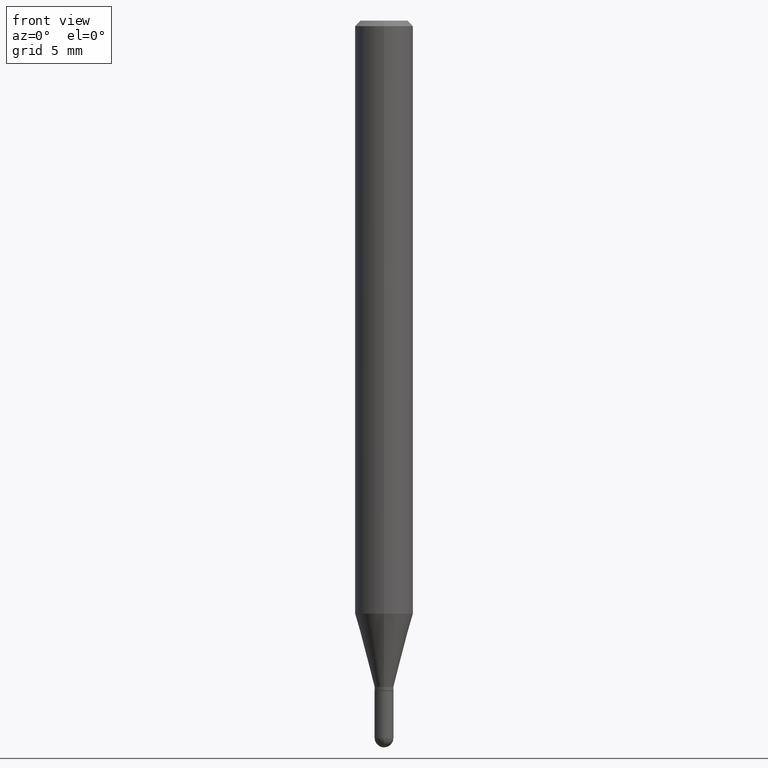
[diagram: clean part render]
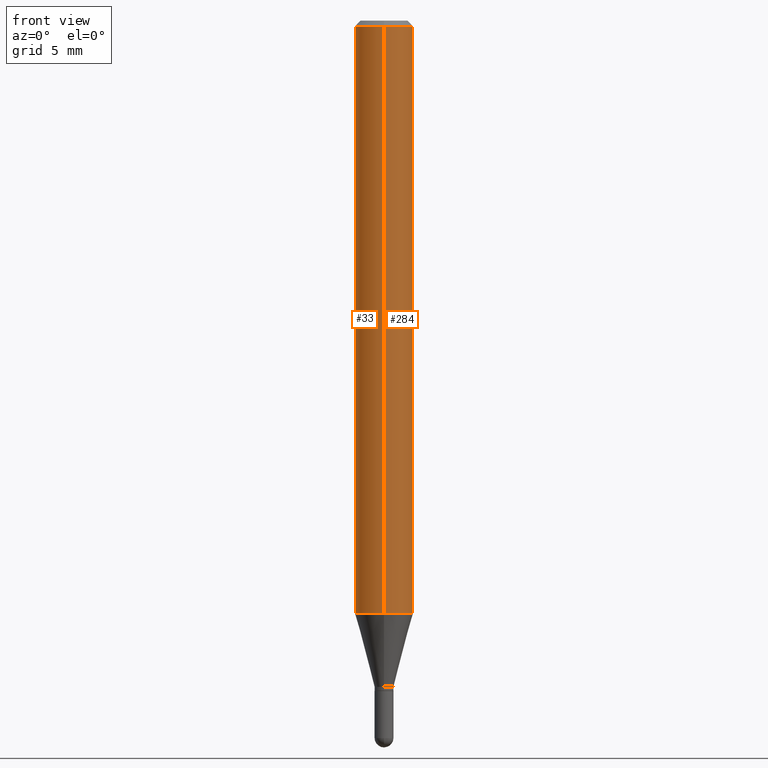
[diagram: same view with one multi-face feature highlighted, each face labeled with its STEP entity id]
A machine part, front view. The highlighted faces form ONE feature: a constant-radius fillet chain: 2 tangent blend faces with common blend radius 2.0002 mm. The faces share edges in the B-rep.
Their STEP definitions:
[1] entity #284 (Cylinder):
#2 = CARTESIAN_POINT ( 'NONE',  ( 5.595524044111178503E-16, 0.07874999999999436617, -1.606141499577714127 ) ) ;
#4 = EDGE_LOOP ( 'NONE', ( #87, #277, #6, #43 ) ) ;
#6 = ORIENTED_EDGE ( 'NONE', *, *, #151, .F. ) ;
#12 = AXIS2_PLACEMENT_3D ( 'NONE', #432, #510, #39 ) ;
#39 = DIRECTION ( 'NONE',  ( -6.982962677686264344E-15, -1.000000000000000000, 3.469013325287953293E-15 ) ) ;
#41 = EDGE_CURVE ( 'NONE', #403, #158, #329, .T. ) ;
#43 = ORIENTED_EDGE ( 'NONE', *, *, #93, .F. ) ;
#57 = CYLINDRICAL_SURFACE ( 'NONE', #139, 0.07875000000000000056 ) ;
#71 = CARTESIAN_POINT ( 'NONE',  ( -5.499083108677933457E-16, -0.07875000000000000056, 2.749503105160112772E-16 ) ) ;
#87 = ORIENTED_EDGE ( 'NONE', *, *, #480, .T. ) ;
#93 = EDGE_CURVE ( 'NONE', #160, #448, #108, .T. ) ;
#94 = CARTESIAN_POINT ( 'NONE',  ( 0.000000000000000000, 0.000000000000000000, 0.000000000000000000 ) ) ;
#108 = LINE ( 'NONE', #71, #310 ) ;
#110 = CARTESIAN_POINT ( 'NONE',  ( -5.499083108677930499E-16, -0.07875000000000004219, -0.01499999999999974097 ) ) ;
#111 = AXIS2_PLACEMENT_3D ( 'NONE', #462, #262, #502 ) ;
#118 = CIRCLE ( 'NONE', #111, 0.07875000000000000056 ) ;
#128 = VECTOR ( 'NONE', #171, 39.37007874015748143 ) ;
#134 = CARTESIAN_POINT ( 'NONE',  ( 5.595524044110787031E-16, 0.07875000000000000056, -2.749503105160112772E-16 ) ) ;
#139 = AXIS2_PLACEMENT_3D ( 'NONE', #94, #208, #368 ) ;
#143 = CARTESIAN_POINT ( 'NONE',  ( 5.595524044111183434E-16, 0.07874999999999994504, -0.01500000000000029261 ) ) ;
#144 = FACE_OUTER_BOUND ( 'NONE', #4, .T. ) ;
#151 = EDGE_CURVE ( 'NONE', #448, #158, #118, .T. ) ;
#158 = VERTEX_POINT ( 'NONE', #143 ) ;
#160 = VERTEX_POINT ( 'NONE', #424 ) ;
#165 = CIRCLE ( 'NONE', #12, 0.07875000000000000056 ) ;
#171 = DIRECTION ( 'NONE',  ( -2.445502900049389790E-29, 3.491432514489032662E-15, 1.000000000000000000 ) ) ;
#208 = DIRECTION ( 'NONE',  ( -2.445502900049389790E-29, 3.491432514489032662E-15, 1.000000000000000000 ) ) ;
#262 = DIRECTION ( 'NONE',  ( -2.445502900049389790E-29, 3.491432514489032662E-15, 1.000000000000000000 ) ) ;
#277 = ORIENTED_EDGE ( 'NONE', *, *, #41, .T. ) ;
#284 = ADVANCED_FACE ( 'NONE', ( #144 ), #57, .T. ) ;
#310 = VECTOR ( 'NONE', #346, 39.37007874015748143 ) ;
#329 = LINE ( 'NONE', #134, #128 ) ;
#346 = DIRECTION ( 'NONE',  ( -2.445502900049389790E-29, 3.491432514489032662E-15, 1.000000000000000000 ) ) ;
#368 = DIRECTION ( 'NONE',  ( -6.982962677686264344E-15, -1.000000000000000000, 3.491432514489031873E-15 ) ) ;
#403 = VERTEX_POINT ( 'NONE', #2 ) ;
#424 = CARTESIAN_POINT ( 'NONE',  ( -5.499083108677542971E-16, -0.07875000000000560718, -1.606141499577713683 ) ) ;
#432 = CARTESIAN_POINT ( 'NONE',  ( 3.927823695106974642E-29, -5.607734654495803557E-15, -1.606141499577713905 ) ) ;
#448 = VERTEX_POINT ( 'NONE', #110 ) ;
#462 = CARTESIAN_POINT ( 'NONE',  ( 3.668254350074088416E-31, -5.237148771733555328E-17, -0.01500000000000001679 ) ) ;
#480 = EDGE_CURVE ( 'NONE', #160, #403, #165, .T. ) ;
#502 = DIRECTION ( 'NONE',  ( -6.982962677686264344E-15, -1.000000000000000000, 3.496114991891765576E-15 ) ) ;
#510 = DIRECTION ( 'NONE',  ( -2.445502900049389790E-29, 3.491432514489032662E-15, 1.000000000000000000 ) ) ;
[2] entity #33 (Cylinder):
#2 = CARTESIAN_POINT ( 'NONE',  ( 5.595524044111178503E-16, 0.07874999999999436617, -1.606141499577714127 ) ) ;
#16 = DIRECTION ( 'NONE',  ( -6.982962677686264344E-15, -1.000000000000000000, 3.496114991891765576E-15 ) ) ;
#17 = CYLINDRICAL_SURFACE ( 'NONE', #348, 0.07875000000000000056 ) ;
#33 = ADVANCED_FACE ( 'NONE', ( #453 ), #17, .T. ) ;
#41 = EDGE_CURVE ( 'NONE', #403, #158, #329, .T. ) ;
#53 = ORIENTED_EDGE ( 'NONE', *, *, #93, .T. ) ;
#56 = DIRECTION ( 'NONE',  ( -2.445502900049389790E-29, 3.491432514489032662E-15, 1.000000000000000000 ) ) ;
#71 = CARTESIAN_POINT ( 'NONE',  ( -5.499083108677933457E-16, -0.07875000000000000056, 2.749503105160112772E-16 ) ) ;
#93 = EDGE_CURVE ( 'NONE', #160, #448, #108, .T. ) ;
#108 = LINE ( 'NONE', #71, #310 ) ;
#110 = CARTESIAN_POINT ( 'NONE',  ( -5.499083108677930499E-16, -0.07875000000000004219, -0.01499999999999974097 ) ) ;
#128 = VECTOR ( 'NONE', #171, 39.37007874015748143 ) ;
#134 = CARTESIAN_POINT ( 'NONE',  ( 5.595524044110787031E-16, 0.07875000000000000056, -2.749503105160112772E-16 ) ) ;
#143 = CARTESIAN_POINT ( 'NONE',  ( 5.595524044111183434E-16, 0.07874999999999994504, -0.01500000000000029261 ) ) ;
#158 = VERTEX_POINT ( 'NONE', #143 ) ;
#160 = VERTEX_POINT ( 'NONE', #424 ) ;
#164 = AXIS2_PLACEMENT_3D ( 'NONE', #372, #259, #16 ) ;
#171 = DIRECTION ( 'NONE',  ( -2.445502900049389790E-29, 3.491432514489032662E-15, 1.000000000000000000 ) ) ;
#190 = DIRECTION ( 'NONE',  ( -6.982962677686264344E-15, -1.000000000000000000, 3.469013325287953293E-15 ) ) ;
#198 = ORIENTED_EDGE ( 'NONE', *, *, #227, .F. ) ;
#227 = EDGE_CURVE ( 'NONE', #158, #448, #316, .T. ) ;
#232 = DIRECTION ( 'NONE',  ( -2.445502900049389790E-29, 3.491432514489032662E-15, 1.000000000000000000 ) ) ;
#259 = DIRECTION ( 'NONE',  ( -2.445502900049389790E-29, 3.491432514489032662E-15, 1.000000000000000000 ) ) ;
#294 = ORIENTED_EDGE ( 'NONE', *, *, #41, .F. ) ;
#310 = VECTOR ( 'NONE', #346, 39.37007874015748143 ) ;
#316 = CIRCLE ( 'NONE', #164, 0.07875000000000000056 ) ;
#327 = CIRCLE ( 'NONE', #508, 0.07875000000000000056 ) ;
#329 = LINE ( 'NONE', #134, #128 ) ;
#346 = DIRECTION ( 'NONE',  ( -2.445502900049389790E-29, 3.491432514489032662E-15, 1.000000000000000000 ) ) ;
#348 = AXIS2_PLACEMENT_3D ( 'NONE', #487, #56, #446 ) ;
#354 = ORIENTED_EDGE ( 'NONE', *, *, #458, .T. ) ;
#372 = CARTESIAN_POINT ( 'NONE',  ( 3.668254350074088416E-31, -5.237148771733555328E-17, -0.01500000000000001679 ) ) ;
#403 = VERTEX_POINT ( 'NONE', #2 ) ;
#424 = CARTESIAN_POINT ( 'NONE',  ( -5.499083108677542971E-16, -0.07875000000000560718, -1.606141499577713683 ) ) ;
#434 = CARTESIAN_POINT ( 'NONE',  ( 3.927823695106974642E-29, -5.607734654495803557E-15, -1.606141499577713905 ) ) ;
#446 = DIRECTION ( 'NONE',  ( -6.982962677686264344E-15, -1.000000000000000000, 3.491432514489031873E-15 ) ) ;
#448 = VERTEX_POINT ( 'NONE', #110 ) ;
#453 = FACE_OUTER_BOUND ( 'NONE', #474, .T. ) ;
#458 = EDGE_CURVE ( 'NONE', #403, #160, #327, .T. ) ;
#474 = EDGE_LOOP ( 'NONE', ( #294, #354, #53, #198 ) ) ;
#487 = CARTESIAN_POINT ( 'NONE',  ( 0.000000000000000000, 0.000000000000000000, 0.000000000000000000 ) ) ;
#508 = AXIS2_PLACEMENT_3D ( 'NONE', #434, #232, #190 ) ;